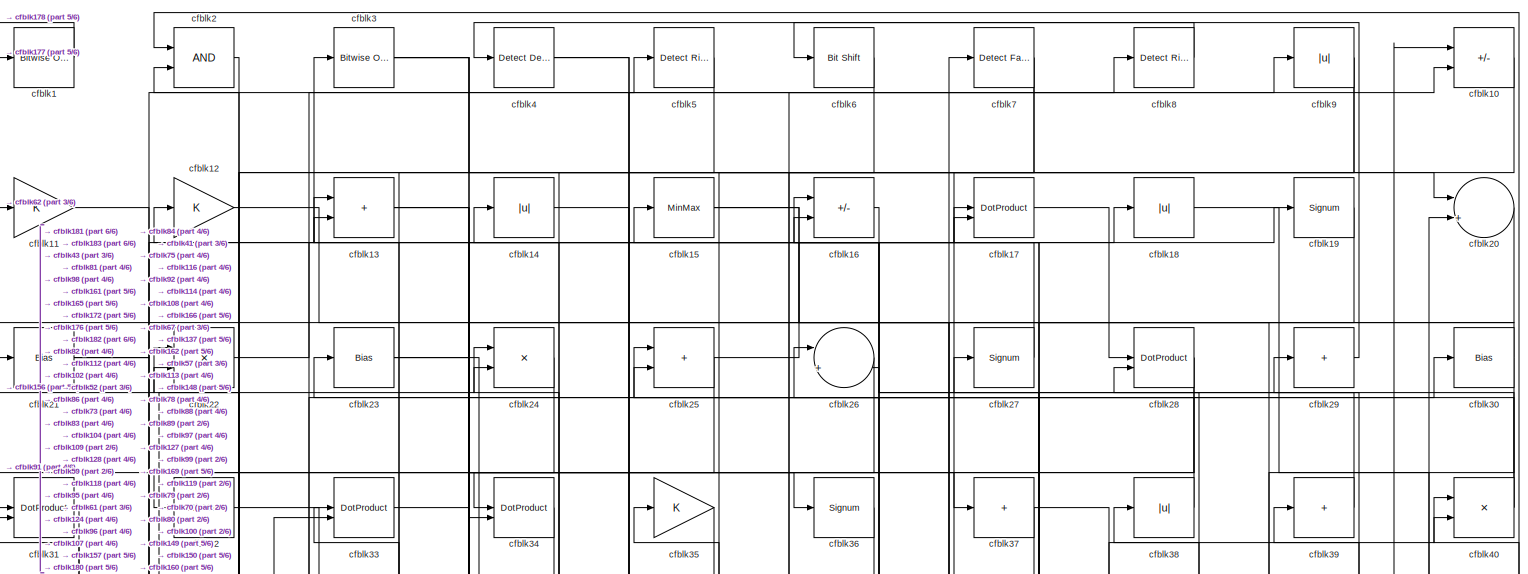
[diagram: root canvas - part 1/6, full width, top band]
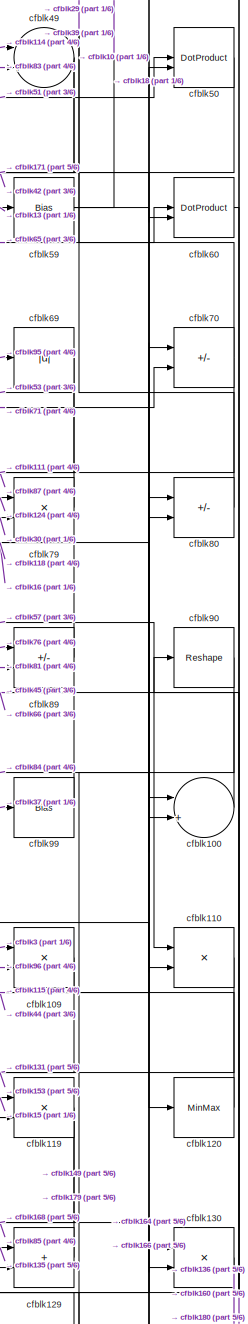
[diagram: root canvas - part 2/6, middle right region]
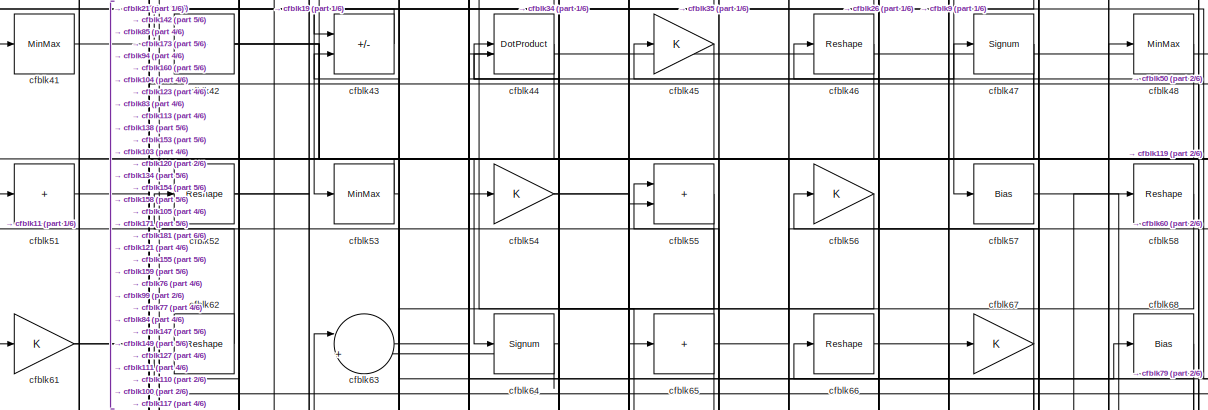
[diagram: root canvas - part 3/6, full width, top band]
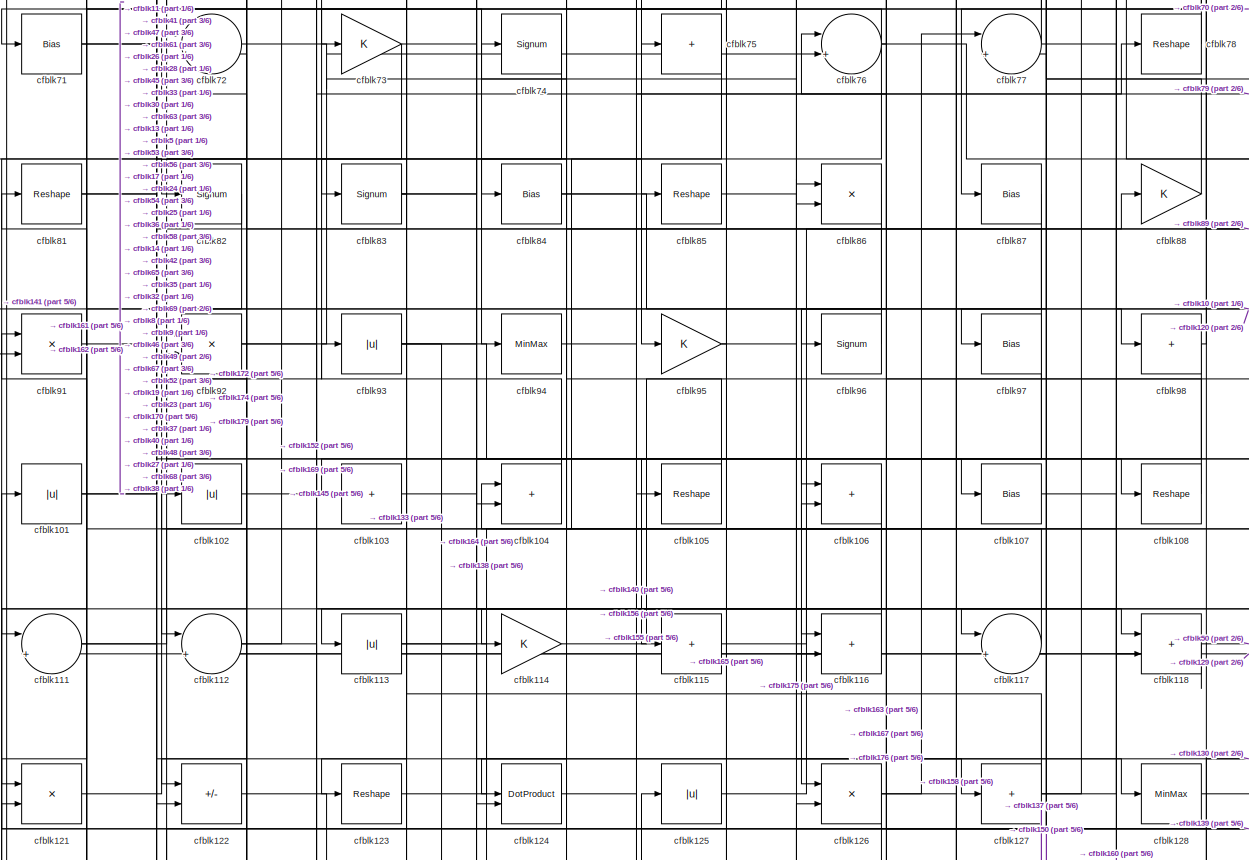
[diagram: root canvas - part 4/6, full width, middle band]
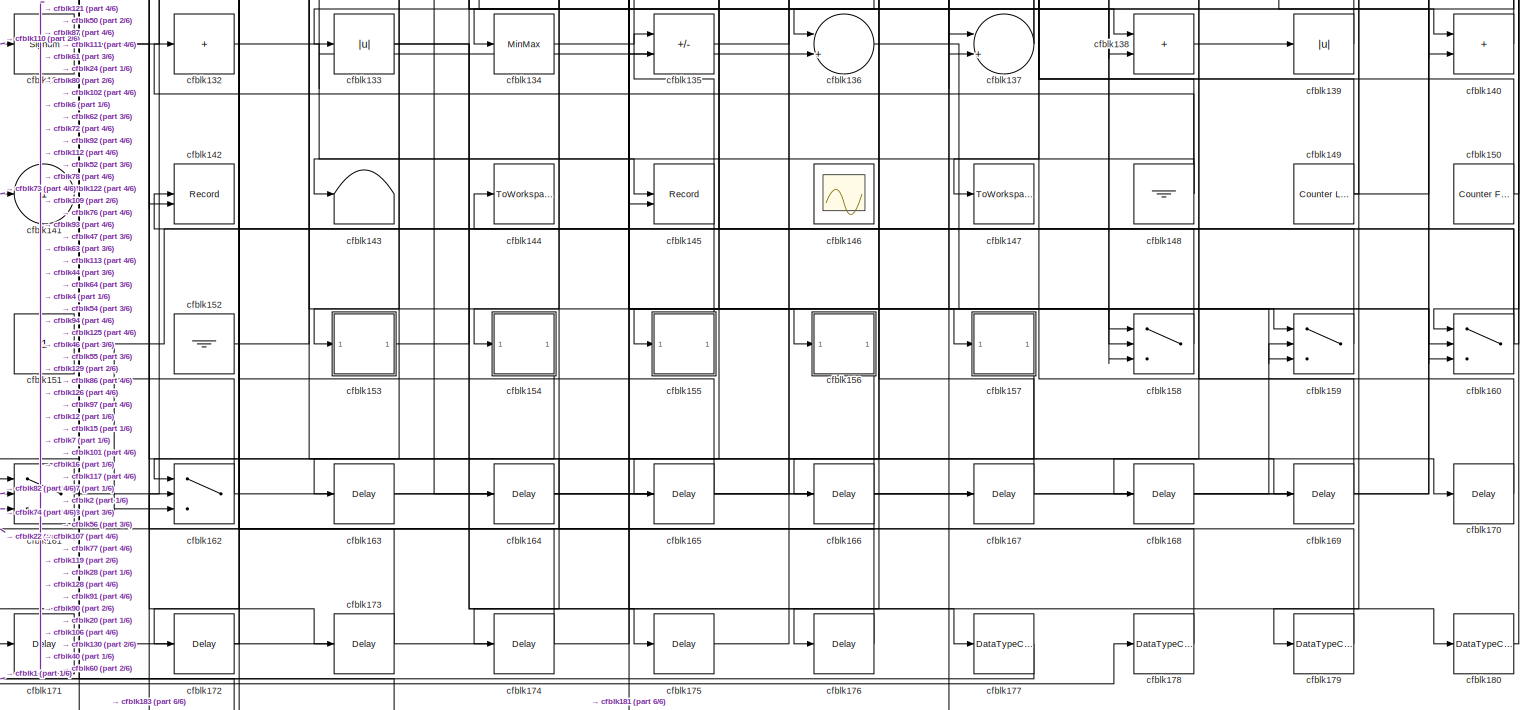
[diagram: root canvas - part 5/6, full width, bottom band]
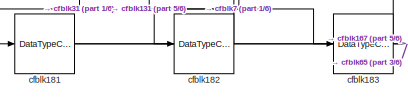
[diagram: root canvas - part 6/6, bottom left region]
MODEL slx_5fab6e2429c2
KIND model
CONFIG AbsTol = auto
CONFIG EnableMultiTasking = off
CONFIG FixedStep = auto
CONFIG MaxStep = auto
CONFIG MinStep = auto
CONFIG RelTol = 1e-3
CONFIG SampleTimeConstraint = Unconstrained
CONFIG SolverName = VariableStepAuto
CONFIG StartTime = 0.0
CONFIG StopTime = 10.0
BLOCK [Reference] cfblk1  REF=simulink/Logic and Bit
Operations/Bitwise
Operator
  LibrarySourceBlock = hdlsllib/Logic and Bit\nOperations/Bitwise\nOperator
  SourceBlock = simulink/Logic and Bit\nOperations/Bitwise\nOperator
  SourceType = Bitwise Operator
BLOCK [Sum] cfblk10
  IconShape = rectangular
  Inputs = +-
BLOCK [Sum] cfblk100
  Inputs = |++
BLOCK [Abs] cfblk101
  SaturateOnIntegerOverflow = off
BLOCK [Abs] cfblk102
  SaturateOnIntegerOverflow = off
BLOCK [Sum] cfblk103
  IconShape = rectangular
  Inputs = +
BLOCK [Sum] cfblk104
  IconShape = rectangular
BLOCK [Reshape] cfblk105
BLOCK [Sum] cfblk106
  IconShape = rectangular
BLOCK [Bias] cfblk107
  Bias = 0.0
  SaturateOnIntegerOverflow = off
BLOCK [Reshape] cfblk108
BLOCK [Product] cfblk109
  Inputs = */
  RndMeth = Zero
  SaturateOnIntegerOverflow = on
BLOCK [Gain] cfblk11
BLOCK [Product] cfblk110
  Inputs = */
  RndMeth = Zero
  SaturateOnIntegerOverflow = on
BLOCK [Sum] cfblk111
  Inputs = |++
BLOCK [Sum] cfblk112
  Inputs = |++
BLOCK [Abs] cfblk113
  SaturateOnIntegerOverflow = off
BLOCK [Gain] cfblk114
BLOCK [Sum] cfblk115
  IconShape = rectangular
  Inputs = +
BLOCK [Sum] cfblk116
  IconShape = rectangular
BLOCK [Sum] cfblk117
  Inputs = |++
BLOCK [Sum] cfblk118
  IconShape = rectangular
BLOCK [Product] cfblk119
  Inputs = */
  RndMeth = Zero
  SaturateOnIntegerOverflow = on
BLOCK [Gain] cfblk12
BLOCK [MinMax] cfblk120
BLOCK [Product] cfblk121
  Inputs = */
  RndMeth = Zero
  SaturateOnIntegerOverflow = on
BLOCK [Sum] cfblk122
  IconShape = rectangular
  Inputs = +-
BLOCK [Reshape] cfblk123
BLOCK [DotProduct] cfblk124
  OutDataTypeStr = Inherit: Inherit via internal rule
BLOCK [Abs] cfblk125
  SaturateOnIntegerOverflow = off
BLOCK [Product] cfblk126
  Inputs = */
  RndMeth = Zero
  SaturateOnIntegerOverflow = on
BLOCK [Sum] cfblk127
  IconShape = rectangular
  Inputs = +
BLOCK [MinMax] cfblk128
BLOCK [Sum] cfblk129
  IconShape = rectangular
BLOCK [Sum] cfblk13
  IconShape = rectangular
BLOCK [Product] cfblk130
  Inputs = */
  RndMeth = Zero
  SaturateOnIntegerOverflow = on
BLOCK [Signum] cfblk131
BLOCK [Sum] cfblk132
  IconShape = rectangular
  Inputs = +
BLOCK [Abs] cfblk133
  SaturateOnIntegerOverflow = off
BLOCK [MinMax] cfblk134
BLOCK [Sum] cfblk135
  IconShape = rectangular
  Inputs = +-
BLOCK [Sum] cfblk136
  Inputs = |++
BLOCK [Sum] cfblk137
  Inputs = |++
BLOCK [Sum] cfblk138
  IconShape = rectangular
BLOCK [Abs] cfblk139
  SaturateOnIntegerOverflow = off
BLOCK [Abs] cfblk14
  SaturateOnIntegerOverflow = off
BLOCK [Sum] cfblk140
  IconShape = rectangular
BLOCK [Outport] cfblk141
  VectorParamsAs1DForOutWhenUnconnected = off
BLOCK [Record] cfblk142
  CompatibilityTag = XY
  FileSettingsInternal = {"entries":[{"content":{"excelSettings":{"content":{},"type":"Streamout.ExcelSettings"}},"type":"Streamout.FileSettingStorage","uuid":""}],"packageUris":["http:\/\/schema.mathworks.com\/mf0\/streamout_blocks\/R2020a"],"version":"1.0"}
  Layout = [1 1]
  SignalsInternal = {"entries":[{"content":{"signals":[{"content":{"blockPath":[],"dimensions":[1],"domain":"","lineColor":"#a2142f","plots":[1],"port":1,"signalID":4494,"signalName":"XY Graph:1"},"type":"RecordBlkView.Signal","uuid":""},{"content":{"blockPath":[],"dimensions":[1],"domain":"","lineColor":"#139fff","plots":[1],"port":2,"signalID":4497,"signalName":"XY Graph:2"},"type":"RecordBlkView.Signal","uuid":""}...<+146ch>
  VisualizationBindings = {"xyplotplugin":{"info":[{"series":[{"bindingParametersList":[{"parameter":"X-Axis","signalID":4494,"signalName":"XY Graph:1"},{"parameter":"Y-Axis","signalID":4497,"signalName":"XY Graph:2"}],"seriesID":46456}],"subplotID":1}]}}
  st = -1
BLOCK [Terminator] cfblk143
BLOCK [ToWorkspace] cfblk144
  MaxDataPoints = inf
  SampleTime = -1
  SaveFormat = Timeseries
  VariableName = simout
BLOCK [Record] cfblk145
  CompatibilityTag = XY
  FileSettingsInternal = {"entries":[{"content":{"excelSettings":{"content":{},"type":"Streamout.ExcelSettings"}},"type":"Streamout.FileSettingStorage","uuid":""}],"packageUris":["http:\/\/schema.mathworks.com\/mf0\/streamout_blocks\/R2020a"],"version":"1.0"}
  Layout = [1 1]
  SignalsInternal = {"entries":[{"content":{"signals":[{"content":{"blockPath":[],"dimensions":[1],"domain":"","lineColor":"#a2142f","plots":[1],"port":1,"signalID":4502,"signalName":"XY Graph:1"},"type":"RecordBlkView.Signal","uuid":""},{"content":{"blockPath":[],"dimensions":[1],"domain":"","lineColor":"#139fff","plots":[1],"port":2,"signalID":4505,"signalName":"XY Graph:2"},"type":"RecordBlkView.Signal","uuid":""}...<+146ch>
  VisualizationBindings = {"xyplotplugin":{"info":[{"series":[{"bindingParametersList":[{"parameter":"X-Axis","signalID":4502,"signalName":"XY Graph:1"},{"parameter":"Y-Axis","signalID":4505,"signalName":"XY Graph:2"}],"seriesID":46147}],"subplotID":1}]}}
  st = -1
BLOCK [Scope] cfblk146
  Floating = on
  NumInputPorts = 1
  ScopeSpecificationString = Simulink.scopes.TimeScopeBlockCfg('CurrentConfiguration', extmgr.ConfigurationSet(extmgr.Configuration('Core','General UI',true,'FigureColor',[0.156862745098039 0.156862745098039 0.156862745098039]),extmgr.Configuration('Core','Source UI',true),extmgr.Configuration('Sources','WiredSimulink',true,'DataLoggingVariableName','ScopeData1','DataLoggingSaveFormat','StructureWithTime','DataLoggingLimitDat...<+2713ch>
BLOCK [ToWorkspace] cfblk147
  MaxDataPoints = inf
  SampleTime = -1
  SaveFormat = Timeseries
  VariableName = simout
BLOCK [Ground] cfblk148
BLOCK [Reference] cfblk149  REF=hdlsllib/Sources/Counter
Limited
  SourceBlock = hdlsllib/Sources/Counter\nLimited
  SourceType = Counter Limited
BLOCK [MinMax] cfblk15
BLOCK [Reference] cfblk150  REF=hdlsllib/Sources/Counter
Free-Running
  SourceBlock = hdlsllib/Sources/Counter\nFree-Running
  SourceType = Counter Free-Running
BLOCK [Constant] cfblk151
  SampleTime = -1
BLOCK [Ground] cfblk152
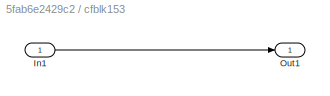
BLOCK [SubSystem] cfblk153
  LibrarySourceBlock = hdlsllib/Ports &\nSubsystems/Subsystem
BLOCK [Inport] cfblk153/In1
BLOCK [Outport] cfblk153/Out1
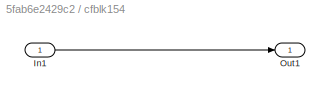
BLOCK [SubSystem] cfblk154
  LibrarySourceBlock = hdlsllib/Ports &\nSubsystems/Subsystem
BLOCK [Inport] cfblk154/In1
BLOCK [Outport] cfblk154/Out1
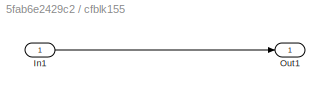
BLOCK [SubSystem] cfblk155
  LibrarySourceBlock = hdlsllib/Ports &\nSubsystems/Subsystem
BLOCK [Inport] cfblk155/In1
BLOCK [Outport] cfblk155/Out1
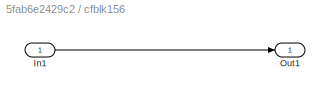
BLOCK [SubSystem] cfblk156
  LibrarySourceBlock = hdlsllib/Ports &\nSubsystems/Subsystem
BLOCK [Inport] cfblk156/In1
BLOCK [Outport] cfblk156/Out1
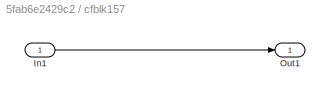
BLOCK [SubSystem] cfblk157
  LibrarySourceBlock = hdlsllib/Ports &\nSubsystems/Subsystem
BLOCK [Inport] cfblk157/In1
BLOCK [Outport] cfblk157/Out1
BLOCK [Switch] cfblk158
  InputSameDT = off
  SaturateOnIntegerOverflow = off
BLOCK [Switch] cfblk159
  InputSameDT = off
  SaturateOnIntegerOverflow = off
BLOCK [Sum] cfblk16
  IconShape = rectangular
  Inputs = +-
BLOCK [Switch] cfblk160
  InputSameDT = off
  SaturateOnIntegerOverflow = off
BLOCK [Switch] cfblk161
  InputSameDT = off
  SaturateOnIntegerOverflow = off
BLOCK [Switch] cfblk162
  InputSameDT = off
  SaturateOnIntegerOverflow = off
BLOCK [Delay] cfblk163
  InputPortMap = u0
  SampleTime = 1
BLOCK [Delay] cfblk164
  InputPortMap = u0
  SampleTime = 1
BLOCK [Delay] cfblk165
  InputPortMap = u0
  SampleTime = 1
BLOCK [Delay] cfblk166
  InputPortMap = u0
  SampleTime = 1
BLOCK [Delay] cfblk167
  InputPortMap = u0
  SampleTime = 1
BLOCK [Delay] cfblk168
  InputPortMap = u0
  SampleTime = 1
BLOCK [Delay] cfblk169
  InputPortMap = u0
  SampleTime = 1
BLOCK [DotProduct] cfblk17
  OutDataTypeStr = Inherit: Inherit via internal rule
BLOCK [Delay] cfblk170
  InputPortMap = u0
  SampleTime = 1
BLOCK [Delay] cfblk171
  InputPortMap = u0
  SampleTime = 1
BLOCK [Delay] cfblk172
  InputPortMap = u0
  SampleTime = 1
BLOCK [Delay] cfblk173
  InputPortMap = u0
  SampleTime = 1
BLOCK [Delay] cfblk174
  InputPortMap = u0
  SampleTime = 1
BLOCK [Delay] cfblk175
  InputPortMap = u0
  SampleTime = 1
BLOCK [Delay] cfblk176
  InputPortMap = u0
  SampleTime = 1
BLOCK [DataTypeConversion] cfblk177
  OutDataTypeStr = boolean
  RndMeth = Floor
  SaturateOnIntegerOverflow = off
BLOCK [DataTypeConversion] cfblk178
  OutDataTypeStr = uint8
  RndMeth = Floor
  SaturateOnIntegerOverflow = off
BLOCK [DataTypeConversion] cfblk179
  OutDataTypeStr = uint8
  RndMeth = Floor
  SaturateOnIntegerOverflow = off
BLOCK [Abs] cfblk18
  SaturateOnIntegerOverflow = off
BLOCK [DataTypeConversion] cfblk180
  OutDataTypeStr = uint8
  RndMeth = Floor
  SaturateOnIntegerOverflow = off
BLOCK [DataTypeConversion] cfblk181
  RndMeth = Floor
  SaturateOnIntegerOverflow = off
BLOCK [DataTypeConversion] cfblk182
  OutDataTypeStr = uint8
  RndMeth = Floor
  SaturateOnIntegerOverflow = off
BLOCK [DataTypeConversion] cfblk183
  OutDataTypeStr = uint8
  RndMeth = Floor
  SaturateOnIntegerOverflow = off
BLOCK [Signum] cfblk19
BLOCK [Logic] cfblk2
  AllPortsSameDT = off
  OutDataTypeStr = boolean
BLOCK [Sum] cfblk20
  Inputs = |++
BLOCK [Bias] cfblk21
  Bias = 0.0
  SaturateOnIntegerOverflow = off
BLOCK [Product] cfblk22
  Inputs = */
  RndMeth = Zero
  SaturateOnIntegerOverflow = on
BLOCK [Bias] cfblk23
  Bias = 0.0
  SaturateOnIntegerOverflow = off
BLOCK [Product] cfblk24
  Inputs = */
  RndMeth = Zero
  SaturateOnIntegerOverflow = on
BLOCK [Sum] cfblk25
  IconShape = rectangular
BLOCK [Sum] cfblk26
  Inputs = |++
BLOCK [Signum] cfblk27
BLOCK [DotProduct] cfblk28
  OutDataTypeStr = Inherit: Inherit via internal rule
BLOCK [Sum] cfblk29
  IconShape = rectangular
  Inputs = +
BLOCK [Reference] cfblk3  REF=simulink/Logic and Bit
Operations/Bitwise
Operator
  LibrarySourceBlock = hdlsllib/Logic and Bit\nOperations/Bitwise\nOperator
  SourceBlock = simulink/Logic and Bit\nOperations/Bitwise\nOperator
  SourceType = Bitwise Operator
BLOCK [Bias] cfblk30
  Bias = 0.0
  SaturateOnIntegerOverflow = off
BLOCK [DotProduct] cfblk31
  OutDataTypeStr = Inherit: Inherit via internal rule
BLOCK [MinMax] cfblk32
BLOCK [DotProduct] cfblk33
  OutDataTypeStr = Inherit: Inherit via internal rule
BLOCK [DotProduct] cfblk34
  OutDataTypeStr = Inherit: Inherit via internal rule
BLOCK [Gain] cfblk35
BLOCK [Signum] cfblk36
BLOCK [Sum] cfblk37
  IconShape = rectangular
  Inputs = +
BLOCK [Abs] cfblk38
  SaturateOnIntegerOverflow = off
BLOCK [Sum] cfblk39
  IconShape = rectangular
  Inputs = +
BLOCK [Reference] cfblk4  REF=simulink/Logic and Bit
Operations/Detect
Decrease
  LibrarySourceBlock = hdlsllib/Logic and Bit\nOperations/Detect\nDecrease
  SourceBlock = simulink/Logic and Bit\nOperations/Detect\nDecrease
  SourceType = Detect Decrease
BLOCK [Product] cfblk40
  Inputs = */
  RndMeth = Zero
  SaturateOnIntegerOverflow = on
BLOCK [MinMax] cfblk41
BLOCK [Sum] cfblk42
  IconShape = rectangular
  Inputs = +
BLOCK [Sum] cfblk43
  IconShape = rectangular
  Inputs = +-
BLOCK [DotProduct] cfblk44
  OutDataTypeStr = Inherit: Inherit via internal rule
BLOCK [Gain] cfblk45
BLOCK [Reshape] cfblk46
BLOCK [Signum] cfblk47
BLOCK [MinMax] cfblk48
BLOCK [Sum] cfblk49
  Inputs = |++
BLOCK [Reference] cfblk5  REF=hdlsllib/Logic and Bit
Operations/Detect Rise
Positive
  SourceBlock = hdlsllib/Logic and Bit\nOperations/Detect Rise\nPositive
  SourceType = Detect Rise Positive
BLOCK [DotProduct] cfblk50
  OutDataTypeStr = Inherit: Inherit via internal rule
BLOCK [Sum] cfblk51
  IconShape = rectangular
  Inputs = +
BLOCK [Reshape] cfblk52
BLOCK [MinMax] cfblk53
BLOCK [Gain] cfblk54
BLOCK [Sum] cfblk55
  IconShape = rectangular
BLOCK [Gain] cfblk56
BLOCK [Bias] cfblk57
  Bias = 0.0
  SaturateOnIntegerOverflow = off
BLOCK [Reshape] cfblk58
BLOCK [Bias] cfblk59
  Bias = 0.0
  SaturateOnIntegerOverflow = off
BLOCK [Reference] cfblk6  REF=hdlsllib/Logic and Bit
Operations/Bit Shift
  SourceBlock = hdlsllib/Logic and Bit\nOperations/Bit Shift
  SourceType = Bit Shift
BLOCK [DotProduct] cfblk60
  OutDataTypeStr = Inherit: Inherit via internal rule
BLOCK [Gain] cfblk61
BLOCK [Reshape] cfblk62
BLOCK [Sum] cfblk63
  Inputs = |++
BLOCK [Signum] cfblk64
BLOCK [Sum] cfblk65
  IconShape = rectangular
  Inputs = +
BLOCK [Reshape] cfblk66
BLOCK [Gain] cfblk67
BLOCK [Bias] cfblk68
  Bias = 0.0
  SaturateOnIntegerOverflow = off
BLOCK [Abs] cfblk69
  SaturateOnIntegerOverflow = off
BLOCK [Reference] cfblk7  REF=hdlsllib/Logic and Bit
Operations/Detect Fall
Negative
  SourceBlock = hdlsllib/Logic and Bit\nOperations/Detect Fall\nNegative
  SourceType = Detect Fall Negative
BLOCK [Sum] cfblk70
  IconShape = rectangular
  Inputs = +-
BLOCK [Bias] cfblk71
  Bias = 0.0
  SaturateOnIntegerOverflow = off
BLOCK [Sum] cfblk72
  Inputs = |++
BLOCK [Gain] cfblk73
BLOCK [Signum] cfblk74
BLOCK [Sum] cfblk75
  IconShape = rectangular
  Inputs = +
BLOCK [Sum] cfblk76
  Inputs = |++
BLOCK [Sum] cfblk77
  Inputs = |++
BLOCK [Reshape] cfblk78
BLOCK [Product] cfblk79
  Inputs = */
  RndMeth = Zero
  SaturateOnIntegerOverflow = on
BLOCK [Reference] cfblk8  REF=hdlsllib/Logic and Bit
Operations/Detect Rise
Nonnegative
  SourceBlock = hdlsllib/Logic and Bit\nOperations/Detect Rise\nNonnegative
  SourceType = Detect Rise Nonnegative
BLOCK [Sum] cfblk80
  IconShape = rectangular
  Inputs = +-
BLOCK [Reshape] cfblk81
BLOCK [Signum] cfblk82
BLOCK [Signum] cfblk83
BLOCK [Bias] cfblk84
  Bias = 0.0
  SaturateOnIntegerOverflow = off
BLOCK [Reshape] cfblk85
BLOCK [Product] cfblk86
  Inputs = */
  RndMeth = Zero
  SaturateOnIntegerOverflow = on
BLOCK [Bias] cfblk87
  Bias = 0.0
  SaturateOnIntegerOverflow = off
BLOCK [Gain] cfblk88
BLOCK [Sum] cfblk89
  IconShape = rectangular
  Inputs = +-
BLOCK [Abs] cfblk9
  SaturateOnIntegerOverflow = off
BLOCK [Reshape] cfblk90
BLOCK [Product] cfblk91
  Inputs = */
  RndMeth = Zero
  SaturateOnIntegerOverflow = on
BLOCK [Product] cfblk92
  Inputs = */
  RndMeth = Zero
  SaturateOnIntegerOverflow = on
BLOCK [Abs] cfblk93
  SaturateOnIntegerOverflow = off
BLOCK [MinMax] cfblk94
BLOCK [Gain] cfblk95
BLOCK [Signum] cfblk96
BLOCK [Bias] cfblk97
  Bias = 0.0
  SaturateOnIntegerOverflow = off
BLOCK [Sum] cfblk98
  IconShape = rectangular
  Inputs = +
BLOCK [Bias] cfblk99
  Bias = 0.0
  SaturateOnIntegerOverflow = off
LINE cfblk100:1 -> cfblk45:1
NET cfblk101:1 -> cfblk108:1, cfblk93:1
LINE cfblk102:1 -> cfblk30:1
LINE cfblk103:1 -> cfblk54:1
LINE cfblk104:1 -> cfblk63:1
LINE cfblk105:1 -> cfblk74:1
LINE cfblk106:1 -> cfblk165:1
LINE cfblk107:1 -> cfblk158:1
LINE cfblk108:1 -> cfblk26:1
LINE cfblk109:1 -> cfblk153:1
LINE cfblk10:1 -> cfblk75:1
LINE cfblk110:1 -> cfblk131:1
NET cfblk111:1 -> cfblk170:1, cfblk48:1
NET cfblk112:1 -> cfblk169:1, cfblk33:2
NET cfblk113:1 -> cfblk138:2, cfblk68:1
LINE cfblk114:1 -> cfblk49:1
LINE cfblk115:1 -> cfblk70:1
LINE cfblk116:1 -> cfblk14:1
LINE cfblk117:1 -> cfblk81:1
NET cfblk118:1 -> cfblk112:2, cfblk50:2
LINE cfblk119:1 -> cfblk168:1
LINE cfblk11:1 -> cfblk98:1
LINE cfblk120:1 -> cfblk44:1
LINE cfblk121:1 -> cfblk92:1
LINE cfblk122:1 -> cfblk145:1
LINE cfblk123:1 -> cfblk67:1
LINE cfblk124:1 -> cfblk79:1
LINE cfblk125:1 -> cfblk88:1
NET cfblk126:1 -> cfblk158:3, cfblk163:1, cfblk77:1
NET cfblk127:1 -> cfblk33:1, cfblk40:1, cfblk58:1
LINE cfblk128:1 -> cfblk140:1
LINE cfblk129:1 -> cfblk111:2
LINE cfblk12:1 -> cfblk137:1
LINE cfblk130:1 -> cfblk136:1
NET cfblk131:1 -> cfblk183:1, cfblk80:1
LINE cfblk132:1 -> cfblk136:2
NET cfblk133:1 -> cfblk175:1, cfblk177:1
LINE cfblk134:1 -> cfblk135:1
LINE cfblk135:1 -> cfblk129:1
LINE cfblk136:1 -> cfblk159:1
NET cfblk137:1 -> cfblk101:1, cfblk16:2
LINE cfblk138:1 -> cfblk139:1
LINE cfblk139:1 -> cfblk91:1
NET cfblk13:1 -> cfblk36:1, cfblk59:1
LINE cfblk140:1 -> cfblk106:2
NET cfblk148:1 -> cfblk132:1, cfblk143:1, cfblk17:1
NET cfblk149:1 -> cfblk129:2, cfblk20:2, cfblk56:1
LINE cfblk14:1 -> cfblk107:1
NET cfblk150:1 -> cfblk117:2, cfblk2:1
NET cfblk151:1 -> cfblk135:2, cfblk162:3
LINE cfblk152:1 -> cfblk78:1
LINE cfblk153/In1:1 -> cfblk153/Out1:1
LINE cfblk153:1 -> cfblk47:1
LINE cfblk154/In1:1 -> cfblk154/Out1:1
LINE cfblk154:1 -> cfblk162:1
LINE cfblk155/In1:1 -> cfblk155/Out1:1
LINE cfblk155:1 -> cfblk125:1
LINE cfblk156/In1:1 -> cfblk156/Out1:1
LINE cfblk156:1 -> cfblk22:1
LINE cfblk157/In1:1 -> cfblk157/Out1:1
LINE cfblk157:1 -> cfblk174:1
LINE cfblk158:1 -> cfblk44:2
LINE cfblk159:1 -> cfblk55:1
NET cfblk15:1 -> cfblk119:1, cfblk137:2
NET cfblk160:1 -> cfblk142:1, cfblk40:2, cfblk62:1
LINE cfblk161:1 -> cfblk24:1
NET cfblk162:1 -> cfblk121:2, cfblk7:1
LINE cfblk163:1 -> cfblk86:1
LINE cfblk164:1 -> cfblk80:2
LINE cfblk165:1 -> cfblk22:2
LINE cfblk166:1 -> cfblk130:1
LINE cfblk167:1 -> cfblk76:1
LINE cfblk168:1 -> cfblk159:2
LINE cfblk169:1 -> cfblk28:2
LINE cfblk16:1 -> cfblk166:1
LINE cfblk170:1 -> cfblk77:2
LINE cfblk171:1 -> cfblk55:2
LINE cfblk172:1 -> cfblk92:2
LINE cfblk173:1 -> cfblk162:2
LINE cfblk174:1 -> cfblk72:1
LINE cfblk175:1 -> cfblk126:2
LINE cfblk176:1 -> cfblk2:2
LINE cfblk177:1 -> cfblk1:1
LINE cfblk178:1 -> cfblk144:1
LINE cfblk179:1 -> cfblk102:1
LINE cfblk17:1 -> cfblk28:1
LINE cfblk180:1 -> cfblk90:1
NET cfblk181:1 -> cfblk167:1, cfblk65:1
LINE cfblk182:1 -> cfblk31:1
LINE cfblk183:1 -> cfblk31:2
LINE cfblk18:1 -> cfblk100:1
LINE cfblk19:1 -> cfblk97:1
LINE cfblk1:1 -> cfblk178:1
LINE cfblk20:1 -> cfblk34:2
NET cfblk21:1 -> cfblk13:1, cfblk43:1
LINE cfblk22:1 -> cfblk9:1
NET cfblk23:1 -> cfblk118:1, cfblk95:1
LINE cfblk24:1 -> cfblk104:2
NET cfblk25:1 -> cfblk124:1, cfblk18:1
LINE cfblk26:1 -> cfblk82:1
LINE cfblk27:1 -> cfblk3:1
NET cfblk28:1 -> cfblk112:1, cfblk91:2
LINE cfblk29:1 -> cfblk4:1
LINE cfblk2:1 -> cfblk32:1
NET cfblk30:1 -> cfblk21:1, cfblk79:2
LINE cfblk31:1 -> cfblk181:1
LINE cfblk32:1 -> cfblk86:2
LINE cfblk33:1 -> cfblk128:1
LINE cfblk34:1 -> cfblk61:1
LINE cfblk35:1 -> cfblk41:1
LINE cfblk36:1 -> cfblk114:1
NET cfblk37:1 -> cfblk113:1, cfblk99:1
LINE cfblk38:1 -> cfblk25:1
LINE cfblk39:1 -> cfblk12:1
NET cfblk3:1 -> cfblk109:1, cfblk20:1, cfblk37:1
NET cfblk40:1 -> cfblk15:1, cfblk25:2
LINE cfblk41:1 -> cfblk85:1
NET cfblk42:1 -> cfblk105:1, cfblk119:2, cfblk60:2
LINE cfblk43:1 -> cfblk42:1
LINE cfblk44:1 -> cfblk142:2
LINE cfblk45:1 -> cfblk122:1
LINE cfblk46:1 -> cfblk155:1
NET cfblk47:1 -> cfblk122:2, cfblk64:1
LINE cfblk48:1 -> cfblk147:1
NET cfblk49:1 -> cfblk109:2, cfblk96:1
NET cfblk4:1 -> cfblk157:1, cfblk180:1
LINE cfblk50:1 -> cfblk171:1
LINE cfblk51:1 -> cfblk50:1
NET cfblk52:1 -> cfblk160:2, cfblk19:1
NET cfblk53:1 -> cfblk51:1, cfblk83:1
NET cfblk54:1 -> cfblk158:2, cfblk159:3
LINE cfblk55:1 -> cfblk154:1
LINE cfblk56:1 -> cfblk123:1
LINE cfblk57:1 -> cfblk110:1
LINE cfblk58:1 -> cfblk103:1
NET cfblk59:1 -> cfblk100:2, cfblk10:1
LINE cfblk5:1 -> cfblk73:1
LINE cfblk60:1 -> cfblk160:1
NET cfblk61:1 -> cfblk173:1, cfblk94:1
LINE cfblk62:1 -> cfblk11:1
LINE cfblk63:1 -> cfblk138:1
NET cfblk64:1 -> cfblk134:1, cfblk63:2
NET cfblk65:1 -> cfblk121:1, cfblk43:2, cfblk60:1
LINE cfblk66:1 -> cfblk110:2
NET cfblk67:1 -> cfblk26:2, cfblk84:1
LINE cfblk68:1 -> cfblk117:1
LINE cfblk69:1 -> cfblk111:1
LINE cfblk6:1 -> cfblk172:1
NET cfblk70:1 -> cfblk29:1, cfblk87:1
NET cfblk71:1 -> cfblk127:1, cfblk70:2
LINE cfblk72:1 -> cfblk76:2
NET cfblk73:1 -> cfblk116:1, cfblk141:1
LINE cfblk74:1 -> cfblk161:3
LINE cfblk75:1 -> cfblk104:1
NET cfblk76:1 -> cfblk133:1, cfblk46:1, cfblk71:1, cfblk89:1
NET cfblk77:1 -> cfblk160:3, cfblk52:1
LINE cfblk78:1 -> cfblk27:1
LINE cfblk79:1 -> cfblk53:1
NET cfblk7:1 -> cfblk182:1, cfblk34:1
LINE cfblk80:1 -> cfblk39:1
NET cfblk81:1 -> cfblk5:1, cfblk89:2
LINE cfblk82:1 -> cfblk161:2
NET cfblk83:1 -> cfblk13:2, cfblk17:2, cfblk49:2
NET cfblk84:1 -> cfblk10:2, cfblk120:1
LINE cfblk85:1 -> cfblk130:2
LINE cfblk86:1 -> cfblk126:1
LINE cfblk87:1 -> cfblk161:1
LINE cfblk88:1 -> cfblk23:1
LINE cfblk89:1 -> cfblk16:1
LINE cfblk8:1 -> cfblk6:1
LINE cfblk90:1 -> cfblk179:1
LINE cfblk91:1 -> cfblk106:1
NET cfblk92:1 -> cfblk118:2, cfblk8:1
NET cfblk93:1 -> cfblk140:2, cfblk145:2, cfblk164:1
LINE cfblk94:1 -> cfblk156:1
NET cfblk95:1 -> cfblk35:1, cfblk69:1
LINE cfblk96:1 -> cfblk24:2
NET cfblk97:1 -> cfblk115:1, cfblk176:1, cfblk72:2
NET cfblk98:1 -> cfblk124:2, cfblk38:1
LINE cfblk99:1 -> cfblk66:1
NET cfblk9:1 -> cfblk116:2, cfblk57:1
note: NET lines group one-source signal fan-out (src -> all destinations, sorted); 1:1 wires keep LINE
